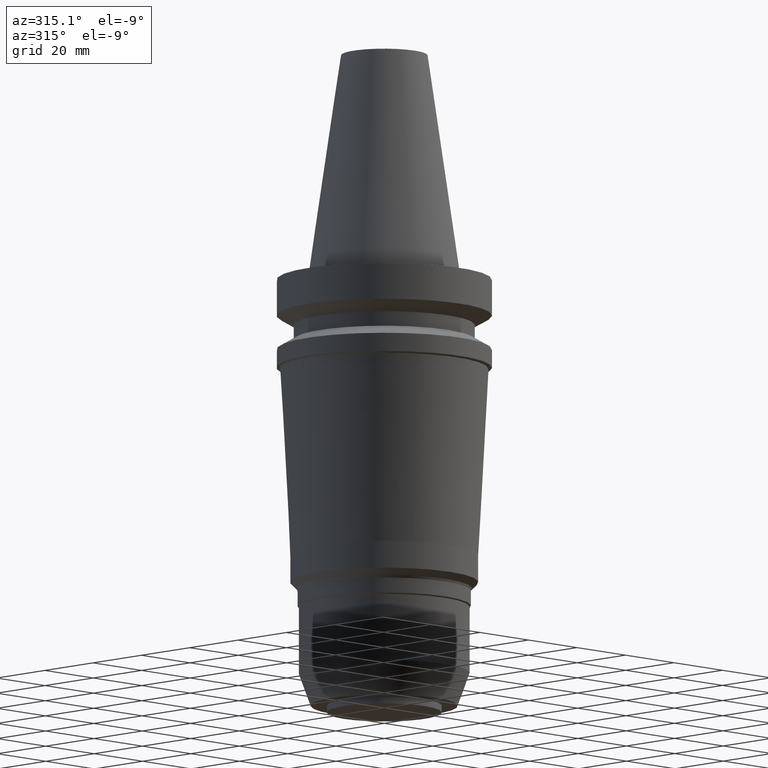
[diagram: clean part render]
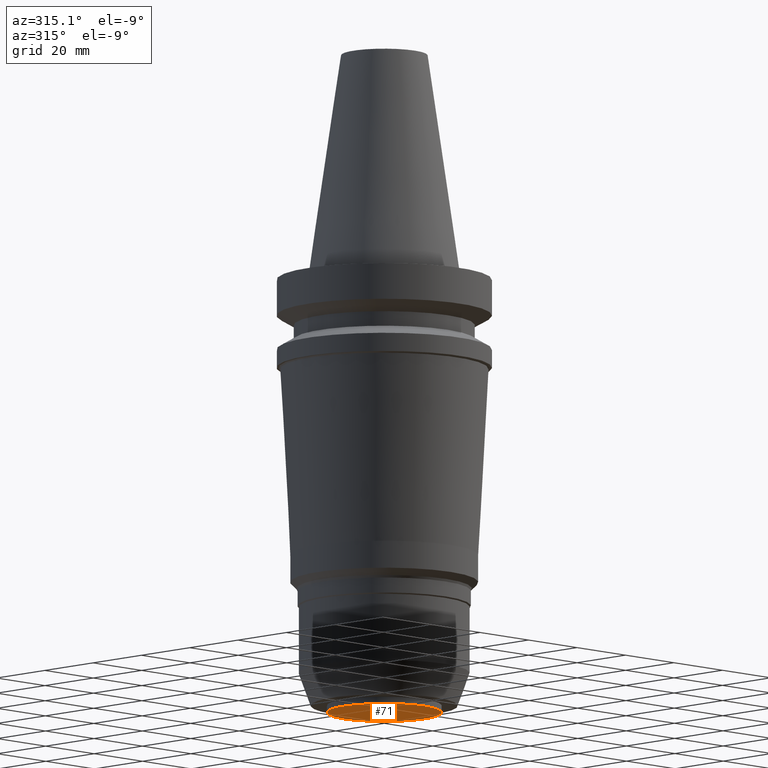
[diagram: same view with one face highlighted and labeled with its STEP entity id]
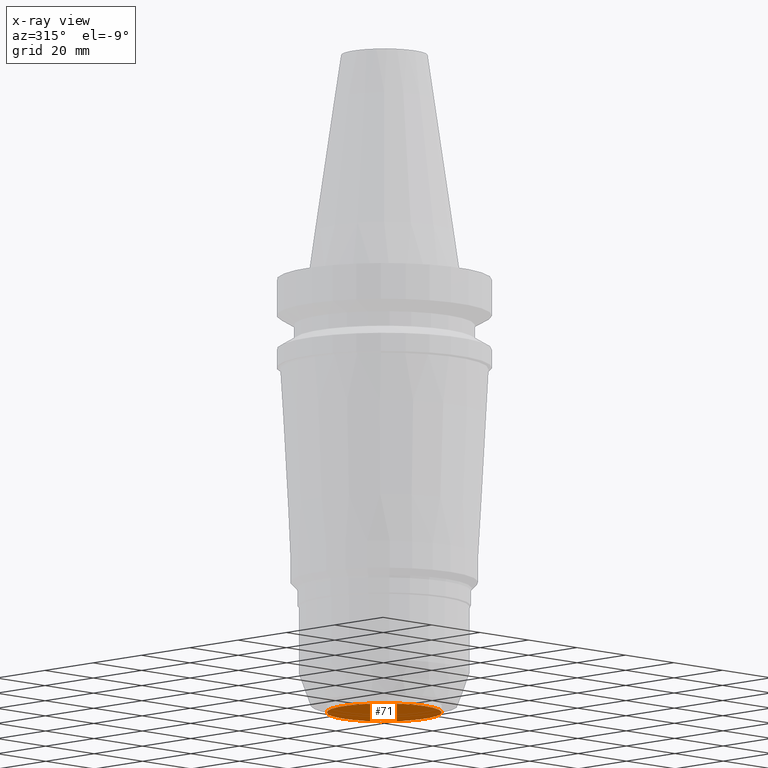
[diagram: x-ray of the same camera — body ghosted, the highlighted face saturated]
A machine part, auxiliary view. The second image highlights one B-rep face of the part: STEP entity #71.
The next image is the same camera in x-ray: the body ghosted, the highlighted face saturated — about 0% of this face is hidden behind the body in this view.
In plain terms, the highlighted planar face has unit normal (0, 0, -1).
Its self-contained STEP definition (entity closure, byte-faithful):
#71=ADVANCED_FACE('Unnamed[1]',(#199),#200,.T.);
#157=EDGE_CURVE('Unnamed[1]',#335,#335,#336,.T.);
#199=FACE_OUTER_BOUND('',#381,.T.);
#200=PLANE('',#382);
#335=VERTEX_POINT('',#550);
#336=CIRCLE('',#551,16.7999999999864);
#381=EDGE_LOOP('',(#596));
#382=AXIS2_PLACEMENT_3D('',#597,#598,#599);
#550=CARTESIAN_POINT('',(7.89897185450042E-015,16.7999999999864,-129.0));
#551=AXIS2_PLACEMENT_3D('',#748,#749,#750);
#596=ORIENTED_EDGE('',*,*,#157,.T.);
#597=CARTESIAN_POINT('',(7.89897185450043E-015,8.39999999999324,-129.0));
#598=DIRECTION('',(6.12323399573677E-017,1.87319172831706E-014,-1.0));
#599=DIRECTION('',(-1.15182627986716E-030,1.0,1.87319172831706E-014));
#748=CARTESIAN_POINT('',(7.89897185450042E-015,6.26469753986547E-014,-129.0));
#749=DIRECTION('',(6.12323399573677E-017,-7.43161200358696E-017,-1.0));
#750=DIRECTION('',(-2.76602804433127E-034,1.0,-7.43161200358696E-017));